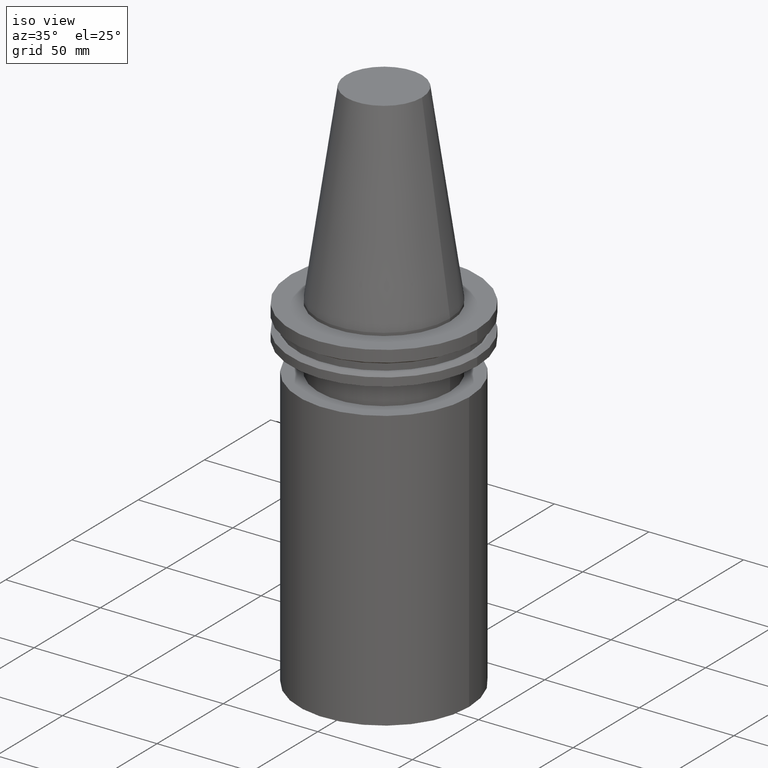
[diagram: clean part render]
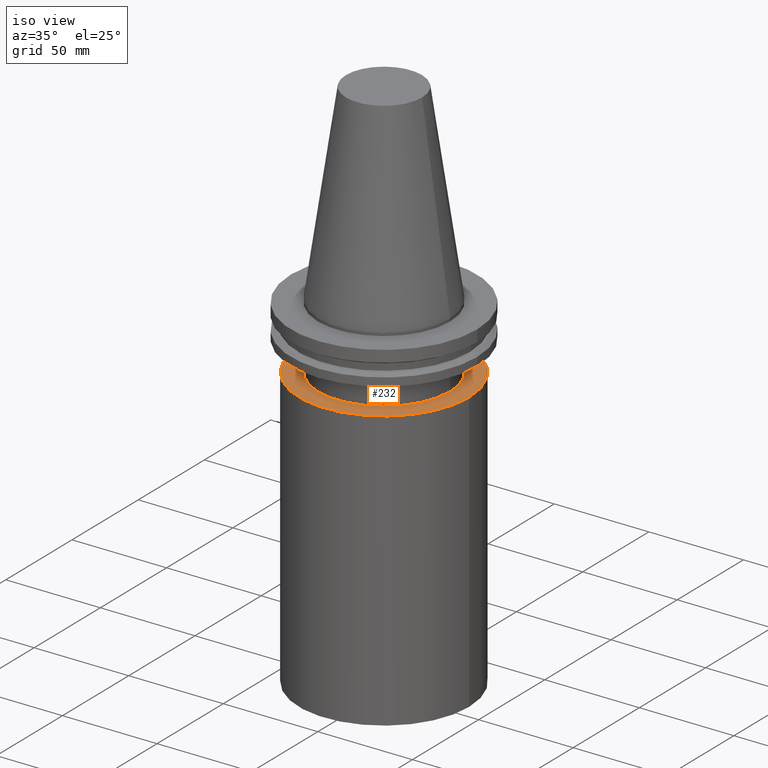
[diagram: same view with one face highlighted and labeled with its STEP entity id]
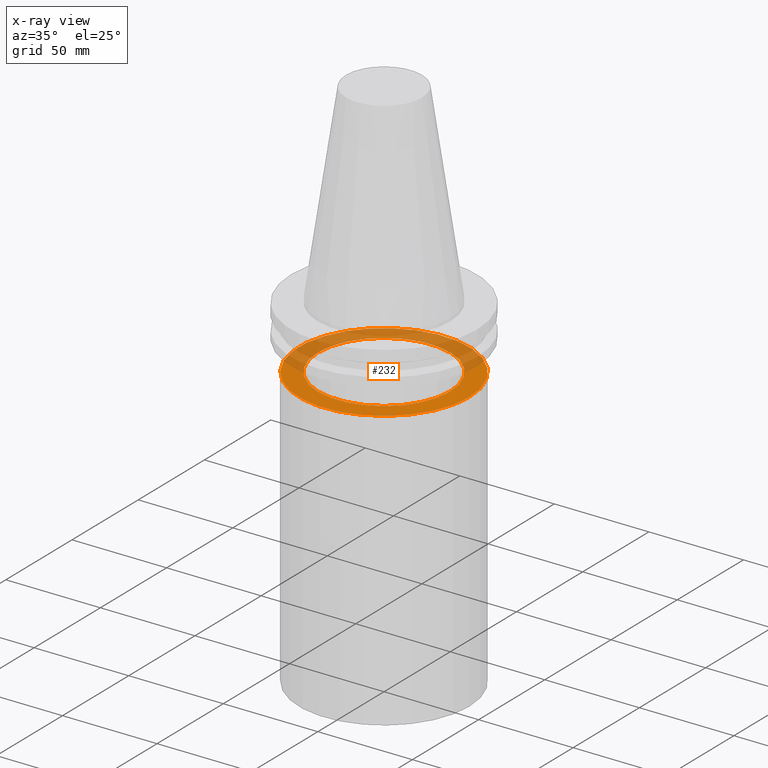
[diagram: x-ray of the same camera — body ghosted, the highlighted face saturated]
A machine part, iso view. The second image highlights one B-rep face of the part: STEP entity #232.
The next image is the same camera in x-ray: the body ghosted, the highlighted face saturated — about 46% of this face is hidden behind the body in this view.
In plain terms, the highlighted planar face has unit normal (0, 0, -1).
Its self-contained STEP definition (entity closure, byte-faithful):
#31 = VERTEX_POINT ( 'NONE', #309 ) ;
#69 = CIRCLE ( 'NONE', #289, 45.00000000000000000 ) ;
#76 = AXIS2_PLACEMENT_3D ( 'NONE', #252, #375, #104 ) ;
#78 = DIRECTION ( 'NONE',  ( 1.000000000000000000, 0.000000000000000000, 0.000000000000000000 ) ) ;
#79 = EDGE_CURVE ( 'NONE', #205, #205, #138, .T. ) ;
#98 = ORIENTED_EDGE ( 'NONE', *, *, #79, .F. ) ;
#104 = DIRECTION ( 'NONE',  ( -1.000000000000000000, 0.000000000000000000, -0.000000000000000000 ) ) ;
#108 = CARTESIAN_POINT ( 'NONE',  ( 0.000000000000000000, 0.000000000000000000, -35.00000000000000000 ) ) ;
#133 = PLANE ( 'NONE',  #76 ) ;
#138 = CIRCLE ( 'NONE', #307, 34.92499999999999716 ) ;
#146 = EDGE_CURVE ( 'NONE', #31, #31, #69, .T. ) ;
#163 = FACE_BOUND ( 'NONE', #389, .T. ) ;
#205 = VERTEX_POINT ( 'NONE', #326 ) ;
#206 = ORIENTED_EDGE ( 'NONE', *, *, #146, .T. ) ;
#232 = ADVANCED_FACE ( 'NONE', ( #163, #280 ), #133, .F. ) ;
#246 = EDGE_LOOP ( 'NONE', ( #206 ) ) ;
#252 = CARTESIAN_POINT ( 'NONE',  ( 0.000000000000000000, 0.000000000000000000, -35.00000000000000000 ) ) ;
#255 = DIRECTION ( 'NONE',  ( -0.000000000000000000, -0.000000000000000000, 1.000000000000000000 ) ) ;
#280 = FACE_OUTER_BOUND ( 'NONE', #246, .T. ) ;
#289 = AXIS2_PLACEMENT_3D ( 'NONE', #108, #255, #312 ) ;
#307 = AXIS2_PLACEMENT_3D ( 'NONE', #315, #378, #78 ) ;
#309 = CARTESIAN_POINT ( 'NONE',  ( 45.00000000000000000, 0.000000000000000000, -35.00000000000000000 ) ) ;
#312 = DIRECTION ( 'NONE',  ( 1.000000000000000000, 0.000000000000000000, 0.000000000000000000 ) ) ;
#315 = CARTESIAN_POINT ( 'NONE',  ( 0.000000000000000000, 0.000000000000000000, -35.00000000000000000 ) ) ;
#326 = CARTESIAN_POINT ( 'NONE',  ( 34.92499999999999716, 0.000000000000000000, -35.00000000000000000 ) ) ;
#375 = DIRECTION ( 'NONE',  ( 0.000000000000000000, 0.000000000000000000, -1.000000000000000000 ) ) ;
#378 = DIRECTION ( 'NONE',  ( -0.000000000000000000, -0.000000000000000000, 1.000000000000000000 ) ) ;
#389 = EDGE_LOOP ( 'NONE', ( #98 ) ) ;